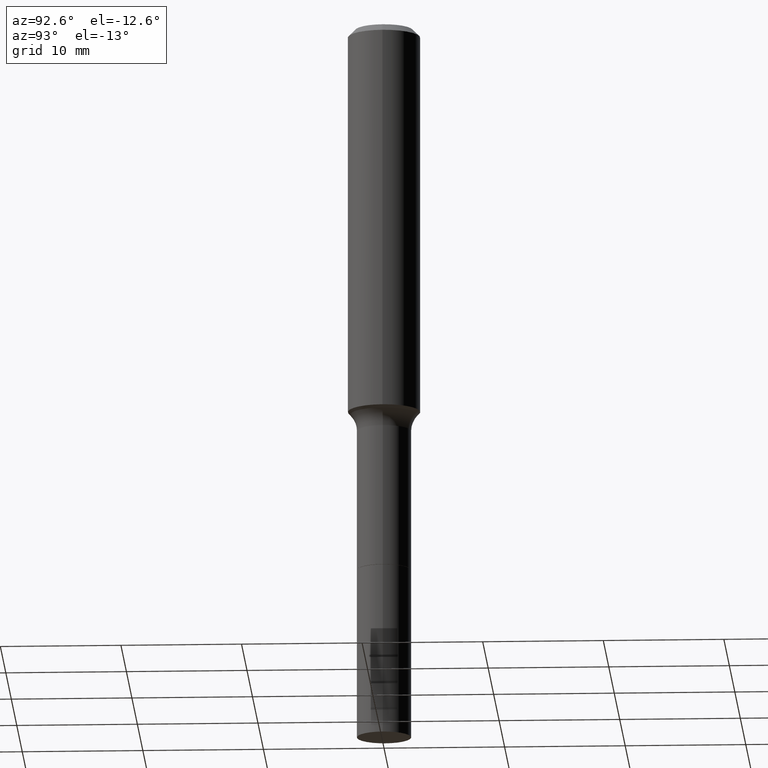
[diagram: clean part render]
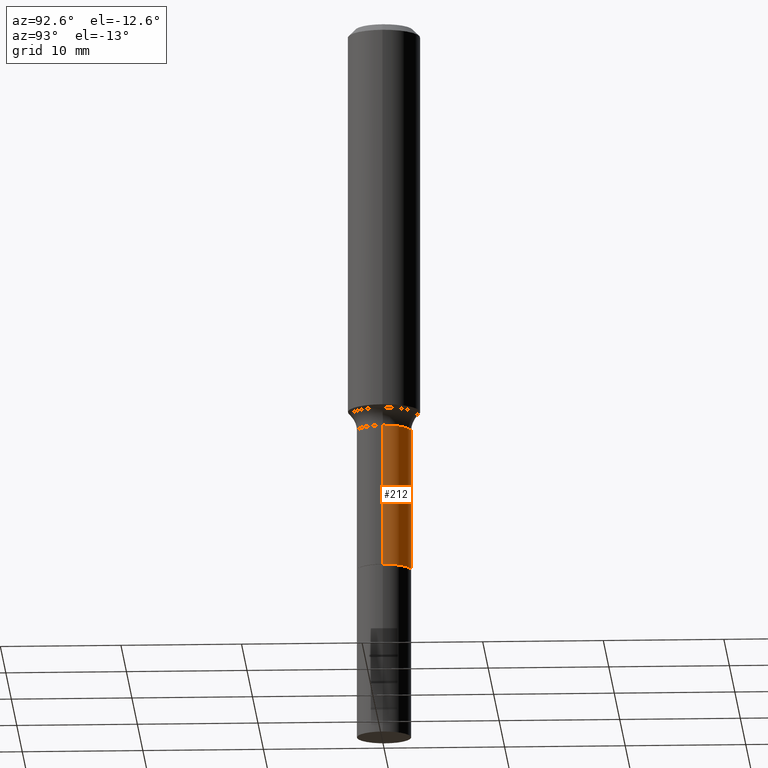
[diagram: same view with one face highlighted and labeled with its STEP entity id]
A machine part, auxiliary view. The second image highlights one B-rep face of the part: STEP entity #212.
In plain terms, the highlighted cylindrical surface (edge-blend (fillet) strip) has radius 2.2504 mm, axis along (-0, 0, 1).
Its self-contained STEP definition (entity closure, byte-faithful):
#33 = AXIS2_PLACEMENT_3D ( 'NONE', #194, #303, #106 ) ;
#49 = CIRCLE ( 'NONE', #125, 0.08859999999999994269 ) ;
#54 = DIRECTION ( 'NONE',  ( -2.445468806185136597E-29, 3.491481338843145583E-15, 1.000000000000000000 ) ) ;
#57 = VERTEX_POINT ( 'NONE', #131 ) ;
#62 = DIRECTION ( 'NONE',  ( -2.445468806185136877E-29, 3.491481338843145188E-15, 1.000000000000000000 ) ) ;
#91 = DIRECTION ( 'NONE',  ( -2.445468806185136597E-29, 3.491481338843145583E-15, 1.000000000000000000 ) ) ;
#104 = CARTESIAN_POINT ( 'NONE',  ( -0.08859999999999994269, -4.853656004702769040E-15, -1.338200000000000056 ) ) ;
#106 = DIRECTION ( 'NONE',  ( 1.000000000000000000, -6.982962677686268288E-15, 0.000000000000000000 ) ) ;
#125 = AXIS2_PLACEMENT_3D ( 'NONE', #447, #54, #168 ) ;
#131 = CARTESIAN_POINT ( 'NONE',  ( -0.08860000000000001208, -4.853656004702768251E-15, -1.802700000000000191 ) ) ;
#132 = EDGE_CURVE ( 'NONE', #198, #493, #141, .T. ) ;
#141 = LINE ( 'NONE', #255, #394 ) ;
#168 = DIRECTION ( 'NONE',  ( 1.000000000000000000, -6.982962677686262766E-15, 0.000000000000000000 ) ) ;
#172 = CARTESIAN_POINT ( 'NONE',  ( 0.000000000000000000, 0.000000000000000000, 0.000000000000000000 ) ) ;
#194 = CARTESIAN_POINT ( 'NONE',  ( 4.408446616909946105E-29, -6.294093409532539036E-15, -1.802700000000000191 ) ) ;
#198 = VERTEX_POINT ( 'NONE', #402 ) ;
#212 = ADVANCED_FACE ( 'NONE', ( #250 ), #502, .T. ) ;
#229 = VECTOR ( 'NONE', #376, 39.37007874015748143 ) ;
#234 = ORIENTED_EDGE ( 'NONE', *, *, #363, .T. ) ;
#244 = ORIENTED_EDGE ( 'NONE', *, *, #132, .F. ) ;
#250 = FACE_OUTER_BOUND ( 'NONE', #480, .T. ) ;
#255 = CARTESIAN_POINT ( 'NONE',  ( 0.08859999999999998432, -6.186904932430030515E-16, 4.320292623355198064E-30 ) ) ;
#263 = CARTESIAN_POINT ( 'NONE',  ( -0.08859999999999998432, 6.295408638834486533E-16, -4.358176489965845566E-30 ) ) ;
#297 = VERTEX_POINT ( 'NONE', #104 ) ;
#303 = DIRECTION ( 'NONE',  ( -2.445468806185136597E-29, 3.491481338843145583E-15, 1.000000000000000000 ) ) ;
#318 = CARTESIAN_POINT ( 'NONE',  ( 0.08859999999999994269, -5.290990820882899698E-15, -1.338200000000000056 ) ) ;
#344 = CIRCLE ( 'NONE', #33, 0.08860000000000001208 ) ;
#363 = EDGE_CURVE ( 'NONE', #198, #57, #344, .T. ) ;
#370 = AXIS2_PLACEMENT_3D ( 'NONE', #172, #91, #409 ) ;
#373 = EDGE_CURVE ( 'NONE', #57, #297, #427, .T. ) ;
#376 = DIRECTION ( 'NONE',  ( -2.445468806185136877E-29, 3.491481338843145188E-15, 1.000000000000000000 ) ) ;
#388 = ORIENTED_EDGE ( 'NONE', *, *, #373, .T. ) ;
#394 = VECTOR ( 'NONE', #62, 39.37007874015748143 ) ;
#402 = CARTESIAN_POINT ( 'NONE',  ( 0.08860000000000001208, -6.912783902775541989E-15, -1.802700000000000191 ) ) ;
#409 = DIRECTION ( 'NONE',  ( 1.000000000000000000, -6.982962677686265922E-15, 4.876176775795935232E-29 ) ) ;
#427 = LINE ( 'NONE', #263, #229 ) ;
#447 = CARTESIAN_POINT ( 'NONE',  ( 3.272526356436949336E-29, -4.672300327639896745E-15, -1.338200000000000056 ) ) ;
#480 = EDGE_LOOP ( 'NONE', ( #234, #388, #504, #244 ) ) ;
#493 = VERTEX_POINT ( 'NONE', #318 ) ;
#502 = CYLINDRICAL_SURFACE ( 'NONE', #370, 0.08859999999999998432 ) ;
#504 = ORIENTED_EDGE ( 'NONE', *, *, #518, .F. ) ;
#518 = EDGE_CURVE ( 'NONE', #493, #297, #49, .T. ) ;